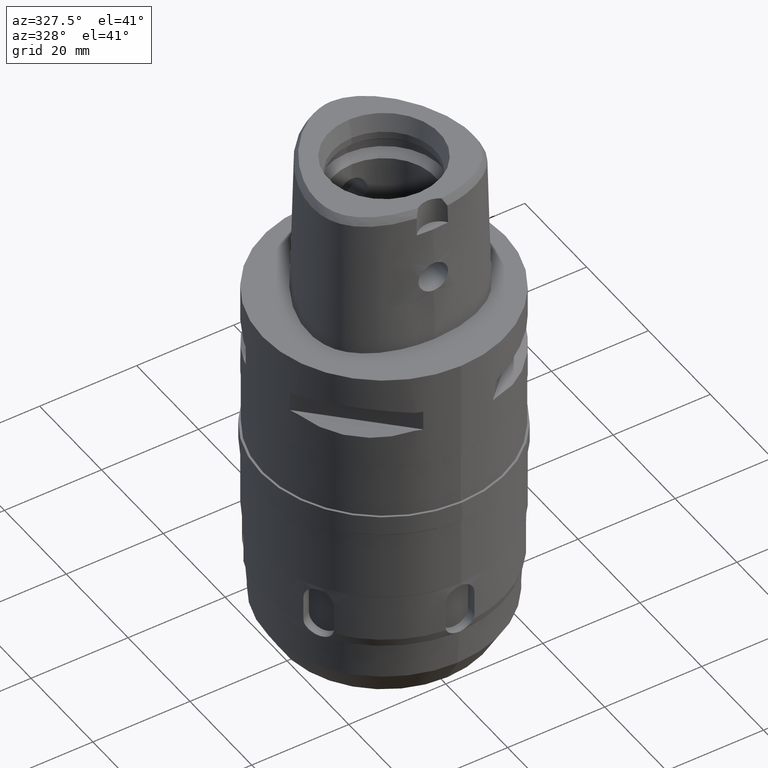
[diagram: clean part render]
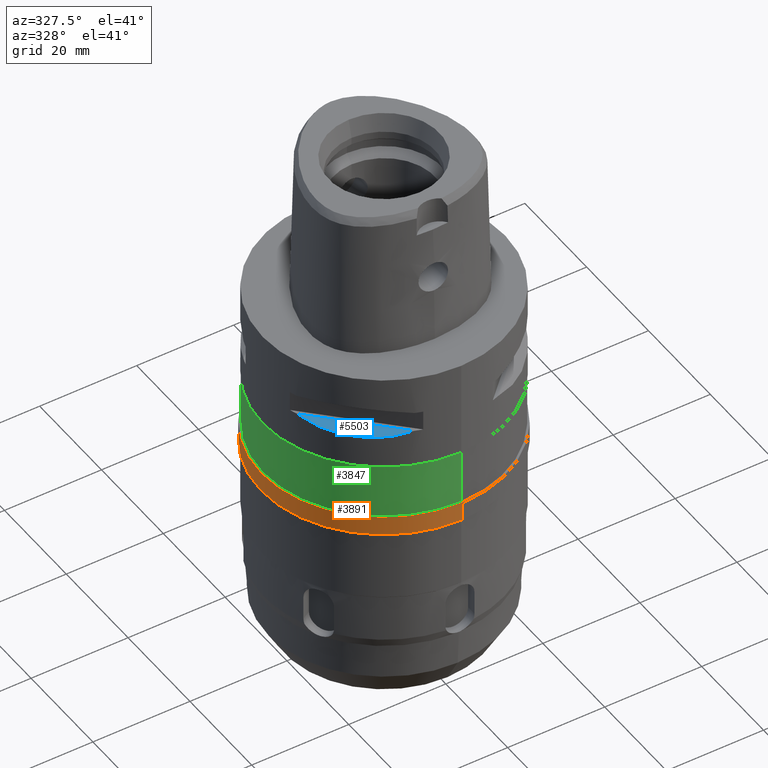
[diagram: same view with three faces highlighted in distinct colors, each labeled with its STEP entity id]
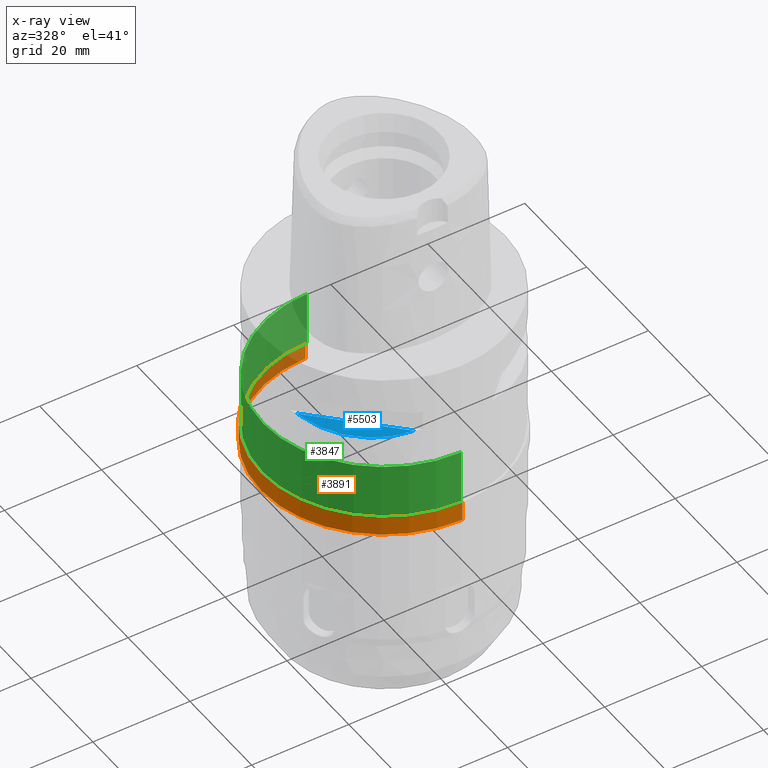
[diagram: x-ray of the same camera — body ghosted, the three highlighted faces saturated]
A machine part, auxiliary view with three faces highlighted in distinct colors.
The next image is the same camera in x-ray (body ghosted, the three faces saturated) — at least one of them is partly hidden behind the body in this view.
Their STEP definitions:

[orange] entity #3891 — the highlighted cylindrical surface (partial cylindrical patch) has radius 25.35 mm, axis along (0, 0, -1).
#603=CARTESIAN_POINT('',(0.E0,0.E0,-3.12E1));
#604=DIRECTION('',(0.E0,0.E0,-1.E0));
#605=DIRECTION('',(0.E0,-1.E0,0.E0));
#606=AXIS2_PLACEMENT_3D('',#603,#604,#605);
#635=DIRECTION('',(0.E0,0.E0,-1.E0));
#636=VECTOR('',#635,4.E0);
#637=CARTESIAN_POINT('',(0.E0,-2.535E1,-3.12E1));
#638=LINE('',#637,#636);
#642=DIRECTION('',(0.E0,0.E0,-1.E0));
#643=VECTOR('',#642,4.E0);
#644=CARTESIAN_POINT('',(0.E0,2.535E1,-3.12E1));
#645=LINE('',#644,#643);
#672=CARTESIAN_POINT('',(0.E0,0.E0,-3.52E1));
#673=DIRECTION('',(0.E0,0.E0,1.E0));
#674=DIRECTION('',(0.E0,1.E0,0.E0));
#675=AXIS2_PLACEMENT_3D('',#672,#673,#674);
#2829=CARTESIAN_POINT('',(0.E0,-2.535E1,-3.12E1));
#2830=CARTESIAN_POINT('',(0.E0,2.535E1,-3.12E1));
#2831=VERTEX_POINT('',#2829);
#2832=VERTEX_POINT('',#2830);
#2833=CARTESIAN_POINT('',(0.E0,2.535E1,-3.52E1));
#2834=VERTEX_POINT('',#2833);
#2835=CARTESIAN_POINT('',(0.E0,-2.535E1,-3.52E1));
#2836=VERTEX_POINT('',#2835);
#3877=CARTESIAN_POINT('',(0.E0,0.E0,3.75E0));
#3878=DIRECTION('',(0.E0,0.E0,-1.E0));
#3879=DIRECTION('',(0.E0,-1.E0,0.E0));
#3880=AXIS2_PLACEMENT_3D('',#3877,#3878,#3879);
#3881=CYLINDRICAL_SURFACE('',#3880,2.535E1);
#3883=ORIENTED_EDGE('',*,*,#3882,.F.);
#3884=ORIENTED_EDGE('',*,*,#3866,.F.);
#3886=ORIENTED_EDGE('',*,*,#3885,.T.);
#3888=ORIENTED_EDGE('',*,*,#3887,.F.);
#3889=EDGE_LOOP('',(#3883,#3884,#3886,#3888));
#3890=FACE_OUTER_BOUND('',#3889,.F.);
#607=CIRCLE('',#606,2.535E1);
#676=CIRCLE('',#675,2.535E1);
#3866=EDGE_CURVE('',#2831,#2832,#607,.T.);
#3882=EDGE_CURVE('',#2832,#2834,#645,.T.);
#3885=EDGE_CURVE('',#2831,#2836,#638,.T.);
#3887=EDGE_CURVE('',#2834,#2836,#676,.T.);
#3891=ADVANCED_FACE('',(#3890),#3881,.T.);

[blue] entity #5503 — the highlighted planar face has unit normal (0.3536, 0.3536, -0.866).
#446=CARTESIAN_POINT('',(-2.345715880140E1,-8.646484890752E0,-1.205E1));
#447=CARTESIAN_POINT('',(-2.279233152396E1,-1.045010326509E1,
-1.251490951850E1));
#448=CARTESIAN_POINT('',(-2.112432544032E1,-1.371898848499E1,
-1.316846568912E1));
#449=CARTESIAN_POINT('',(-1.780567581317E1,-1.780567581317E1,
-1.348201576758E1));
#450=CARTESIAN_POINT('',(-1.371898848499E1,-2.112432544032E1,
-1.316846568912E1));
#451=CARTESIAN_POINT('',(-1.045010326509E1,-2.279233152396E1,
-1.251490951850E1));
#452=CARTESIAN_POINT('',(-8.646484890752E0,-2.345715880140E1,-1.205E1));
#2732=DIRECTION('',(7.071067811865E-1,-7.071067811865E-1,0.E0));
#2733=VECTOR('',#2732,2.094545591232E1);
#2734=CARTESIAN_POINT('',(-2.345715880140E1,-8.646484890754E0,-1.205E1));
#2735=LINE('',#2734,#2733);
#2788=CARTESIAN_POINT('',(-2.345715880140E1,-8.646484890757E0,-1.205E1));
#2789=VERTEX_POINT('',#2788);
#2790=VERTEX_POINT('',#452);
#5494=CARTESIAN_POINT('',(-5.445220128277E0,-2.665842356387E1,-1.205E1));
#5495=DIRECTION('',(3.535533905933E-1,3.535533905933E-1,-8.660254037844E-1));
#5496=DIRECTION('',(-6.123724356958E-1,-6.123724356958E-1,-5.E-1));
#5497=AXIS2_PLACEMENT_3D('',#5494,#5495,#5496);
#5498=PLANE('',#5497);
#5499=ORIENTED_EDGE('',*,*,#3745,.F.);
#5500=ORIENTED_EDGE('',*,*,#5487,.T.);
#5501=EDGE_LOOP('',(#5499,#5500));
#5502=FACE_OUTER_BOUND('',#5501,.F.);
#453=B_SPLINE_CURVE_WITH_KNOTS('',3,(#446,#447,#448,#449,#450,#451,#452),
.UNSPECIFIED.,.F.,.F.,(4,1,1,1,4),(0.E0,2.5E-1,5.E-1,7.5E-1,1.E0),
.UNSPECIFIED.);
#3745=EDGE_CURVE('',#2789,#2790,#453,.T.);
#5487=EDGE_CURVE('',#2789,#2790,#2735,.T.);
#5503=ADVANCED_FACE('',(#5502),#5498,.F.);

[green] entity #3847 — the highlighted cylindrical surface (partial cylindrical patch) has radius 24.9 mm, axis along (0, 0, -1).
#581=CARTESIAN_POINT('',(0.E0,0.E0,-2.E1));
#582=DIRECTION('',(0.E0,0.E0,-1.E0));
#583=DIRECTION('',(0.E0,-1.E0,0.E0));
#584=AXIS2_PLACEMENT_3D('',#581,#582,#583);
#589=DIRECTION('',(0.E0,0.E0,-1.E0));
#590=VECTOR('',#589,1.12E1);
#591=CARTESIAN_POINT('',(0.E0,-2.49E1,-2.E1));
#592=LINE('',#591,#590);
#596=DIRECTION('',(0.E0,0.E0,-1.E0));
#597=VECTOR('',#596,1.12E1);
#598=CARTESIAN_POINT('',(0.E0,2.49E1,-2.E1));
#599=LINE('',#598,#597);
#627=CARTESIAN_POINT('',(0.E0,0.E0,-3.12E1));
#628=DIRECTION('',(0.E0,0.E0,1.E0));
#629=DIRECTION('',(0.E0,1.E0,0.E0));
#630=AXIS2_PLACEMENT_3D('',#627,#628,#629);
#2821=CARTESIAN_POINT('',(0.E0,2.49E1,-2.E1));
#2822=VERTEX_POINT('',#2821);
#2823=CARTESIAN_POINT('',(0.E0,-2.49E1,-2.E1));
#2824=VERTEX_POINT('',#2823);
#2825=CARTESIAN_POINT('',(0.E0,2.49E1,-3.12E1));
#2826=VERTEX_POINT('',#2825);
#2827=CARTESIAN_POINT('',(0.E0,-2.49E1,-3.12E1));
#2828=VERTEX_POINT('',#2827);
#3833=CARTESIAN_POINT('',(0.E0,0.E0,3.75E0));
#3834=DIRECTION('',(0.E0,0.E0,-1.E0));
#3835=DIRECTION('',(0.E0,-1.E0,0.E0));
#3836=AXIS2_PLACEMENT_3D('',#3833,#3834,#3835);
#3837=CYLINDRICAL_SURFACE('',#3836,2.49E1);
#3839=ORIENTED_EDGE('',*,*,#3838,.F.);
#3840=ORIENTED_EDGE('',*,*,#3828,.F.);
#3842=ORIENTED_EDGE('',*,*,#3841,.T.);
#3844=ORIENTED_EDGE('',*,*,#3843,.F.);
#3845=EDGE_LOOP('',(#3839,#3840,#3842,#3844));
#3846=FACE_OUTER_BOUND('',#3845,.F.);
#585=CIRCLE('',#584,2.49E1);
#631=CIRCLE('',#630,2.49E1);
#3828=EDGE_CURVE('',#2824,#2822,#585,.T.);
#3838=EDGE_CURVE('',#2822,#2826,#599,.T.);
#3841=EDGE_CURVE('',#2824,#2828,#592,.T.);
#3843=EDGE_CURVE('',#2826,#2828,#631,.T.);
#3847=ADVANCED_FACE('',(#3846),#3837,.T.);